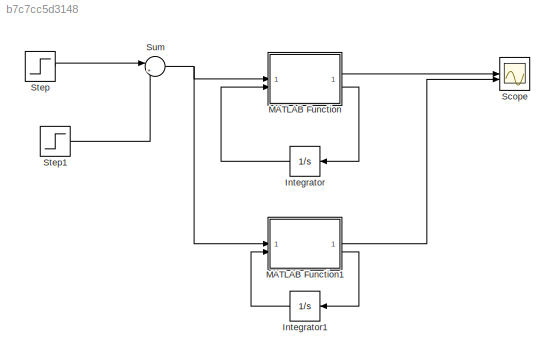
MODEL slx_b7c7cc5d3148
KIND model
CONFIG AbsTol = auto
CONFIG EnableMultiTasking = off
CONFIG FixedStep = auto
CONFIG MaxStep = auto
CONFIG MinStep = auto
CONFIG RelTol = 1e-3
CONFIG SampleTimeConstraint = Unconstrained
CONFIG SolverName = VariableStepAuto
CONFIG StartTime = 0.0
CONFIG StopTime = 10
BLOCK [Integrator] Integrator
  InitialCondition = param.x0
BLOCK [Integrator] Integrator1
  InitialCondition = param.x0
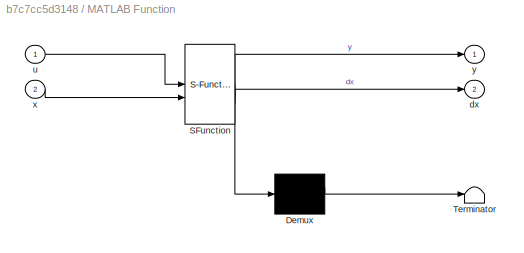
BLOCK [SubSystem] MATLAB Function
  ErrorFcn = Stateflow.Translate.translate
  PermitHierarchicalResolution = ExplicitOnly
  SFBlockType = MATLAB Function
  TreatAsAtomicUnit = on
BLOCK [Demux] MATLAB Function/ Demux 
  Outputs = 1
BLOCK [S-Function] MATLAB Function/ SFunction 
  EnableBusSupport = on
  FunctionName = sf_sfun
  Parameters = param
  PortCounts = [2 3]
  SFcnIsStateOwnerBlock = off
  SFunctionDeploymentMode = off
  Tag = Stateflow S-Function 2
BLOCK [Terminator] MATLAB Function/ Terminator 
BLOCK [Outport] MATLAB Function/dx
  Port = 2
BLOCK [Inport] MATLAB Function/u
BLOCK [Inport] MATLAB Function/x
  Port = 2
BLOCK [Outport] MATLAB Function/y
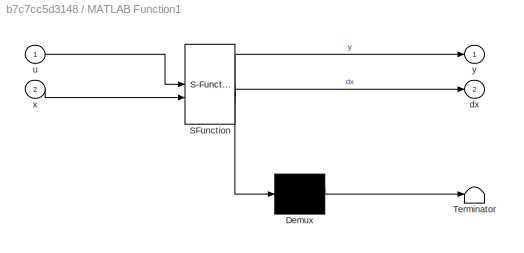
BLOCK [SubSystem] MATLAB Function1
  ErrorFcn = Stateflow.Translate.translate
  PermitHierarchicalResolution = ExplicitOnly
  SFBlockType = MATLAB Function
  TreatAsAtomicUnit = on
BLOCK [Demux] MATLAB Function1/ Demux 
  Outputs = 1
BLOCK [S-Function] MATLAB Function1/ SFunction 
  EnableBusSupport = on
  FunctionName = sf_sfun
  Parameters = param
  PortCounts = [2 3]
  SFcnIsStateOwnerBlock = off
  SFunctionDeploymentMode = off
  Tag = Stateflow S-Function 1
BLOCK [Terminator] MATLAB Function1/ Terminator 
BLOCK [Outport] MATLAB Function1/dx
  Port = 2
BLOCK [Inport] MATLAB Function1/u
BLOCK [Inport] MATLAB Function1/x
  Port = 2
BLOCK [Outport] MATLAB Function1/y
BLOCK [Scope] Scope
  Floating = off
  NumInputPorts = 2
  ScopeSpecificationString = Simulink.scopes.TimeScopeBlockCfg('CurrentConfiguration', extmgr.ConfigurationSet(extmgr.Configuration('Core','General UI',true),extmgr.Configuration('Core','Source UI',true),extmgr.Configuration('Sources','WiredSimulink',true),extmgr.Configuration('Visuals','Time Domain',true,'SerializedDisplays',{struct('MinYLimReal','0.56509','MaxYLimReal','5.78662','YLabelReal','','MinYLimMag','0.56509','MaxYL...<+1451ch>
BLOCK [Step] Step
  After = 5
  SampleTime = 0
BLOCK [Step] Step1
  After = -5
  SampleTime = 0
  Time = 1.2
BLOCK [Sum] Sum
  Inputs = |++
LINE Integrator1:1 -> MATLAB Function1:2
LINE Integrator:1 -> MATLAB Function:2
LINE MATLAB Function1:1 -> Scope:2
LINE MATLAB Function1:2 -> Integrator1:1
LINE MATLAB Function:1 -> Scope:1
LINE MATLAB Function:2 -> Integrator:1
LINE Step1:1 -> Sum:2
LINE Step:1 -> Sum:1
NET Sum:1 -> MATLAB Function1:1, MATLAB Function:1
note: NET lines group one-source signal fan-out (src -> all destinations, sorted); 1:1 wires keep LINE
CHART MATLAB Function1 states=1 transitions=1
  STATE_LABEL 'eML_blk_kernel()'
  STATE_LABEL 'SCRIPT:\nfunction [y, dx]= ctrl_mdl(u, x, param)\n\n    g = param.g;\n%     l_c = param.l_c;\n%     l_ax = param.l_ax;\n%     l_ay = param.l_ay;\n%     k_f = param.k_t;\n%     s_0 = param.s_0;\n    k_r = 0.001;\n    m_B1 = param.m_B1;\n    m_B2 = param.m_B2;\n%     l_B1 = param.l_B1;\n%     l_B2 = param.l_B2;\n    J_Pzz = param.J_Pzz;\n    d_P = param.d_P;\n    R_m = param.R_m;\n    k_b = param.k_b;\n    k_m = para...<+647ch>'
CHART MATLAB Function states=1 transitions=1
  STATE_LABEL 'eML_blk_kernel()'
  STATE_LABEL 'SCRIPT:\nfunction [y, dx]= sim_mdl(u, x, param)\n\n    g = param.g;\n    l_c = param.l_c;\n    l_ax = param.l_ax;\n    l_ay = param.l_ay;\n    k_f = param.k_t;\n    s_0 = param.s_0;\n    m_B1 = param.m_B1;\n    m_B2 = param.m_B2;\n%     l_B1 = param.l_B1;\n%     l_B2 = param.l_B2;\n    J_Pzz = param.J_Pzz;\n    d_P = param.d_P;\n    R_m = param.R_m;\n    k_b = param.k_b;\n    k_m = param.k_m;\n    K_g = param.K_g;\n...<+1641ch>'
CHART  states=0 transitions=0
CHART  states=0 transitions=0
